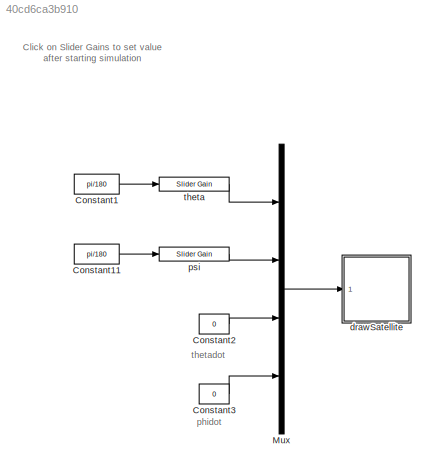
MODEL slx_40cd6ca3b910
KIND model
CONFIG AbsTol = auto
CONFIG EnableMultiTasking = on
CONFIG FixedStep = auto
CONFIG InitFcn = restoredefaultpath\nclear all\naddpath('./..')\nsatellite_param
CONFIG MaxStep = auto
CONFIG MinStep = auto
CONFIG RelTol = 1e-3
CONFIG SampleTimeConstraint = Unconstrained
CONFIG Solver = ode45
CONFIG SolverName = ode45
CONFIG StartTime = 0.0
CONFIG StopTime = 10000
BLOCK [Constant] Constant1
  Value = pi/180
BLOCK [Constant] Constant11
  Value = pi/180
BLOCK [Constant] Constant2
  Value = 0
BLOCK [Constant] Constant3
  Value = 0
BLOCK [Mux] Mux
  DisplayOption = bar
  Ports = [4, 1]
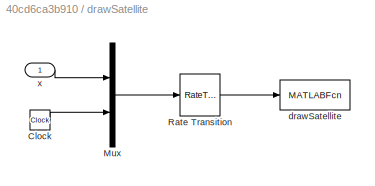
BLOCK [SubSystem] drawSatellite
  Ports = [1]
  RequestExecContextInheritance = off
BLOCK [Clock] drawSatellite/Clock
BLOCK [Mux] drawSatellite/Mux
  DisplayOption = bar
  Inputs = 2
  Ports = [2, 1]
BLOCK [RateTransition] drawSatellite/Rate Transition
  OutPortSampleTime = P.t_plot
BLOCK [MATLABFcn] drawSatellite/drawSatellite
  MATLABFcn = satellite_animation(u,P)
  OutputDimensions = 0
  Ports = [1]
BLOCK [Inport] drawSatellite/x
  IconDisplay = Port number
BLOCK [Reference] psi  REF=simulink/Math
Operations/Slider
Gain
  Ports = [1, 1]
  SourceBlock = simulink/Math\nOperations/Slider\nGain
  SourceProductBaseCode = SL
  SourceProductName = Simulink
  SourceType = Slider Gain
BLOCK [Reference] theta  REF=simulink/Math
Operations/Slider
Gain
  Ports = [1, 1]
  SourceBlock = simulink/Math\nOperations/Slider\nGain
  SourceProductBaseCode = SL
  SourceProductName = Simulink
  SourceType = Slider Gain
ANNOTATION (root): Click on Slider Gains to set value after starting simulation
ANNOTATION (root): phidot
ANNOTATION (root): thetadot
LINE Constant11:1 -> psi:1
LINE Constant1:1 -> theta:1
LINE Constant2:1 -> Mux:3
LINE Constant3:1 -> Mux:4
LINE Mux:1 -> drawSatellite:1
LINE drawSatellite/Clock:1 -> drawSatellite/Mux:2
LINE drawSatellite/Mux:1 -> drawSatellite/Rate Transition:1
LINE drawSatellite/Rate Transition:1 -> drawSatellite/drawSatellite:1
LINE drawSatellite/x:1 -> drawSatellite/Mux:1
LINE psi:1 -> Mux:2
LINE theta:1 -> Mux:1
